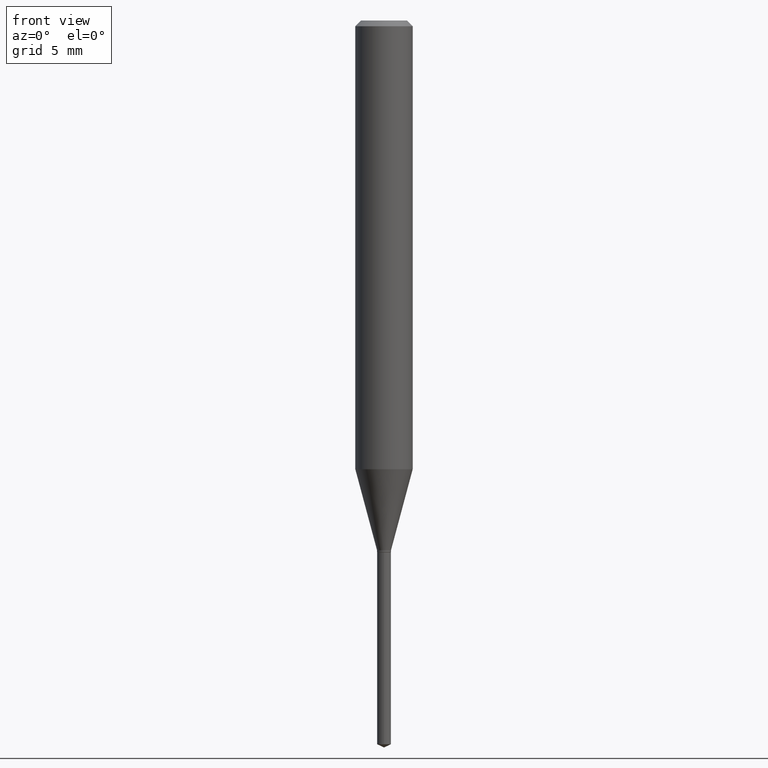
[diagram: clean part render]
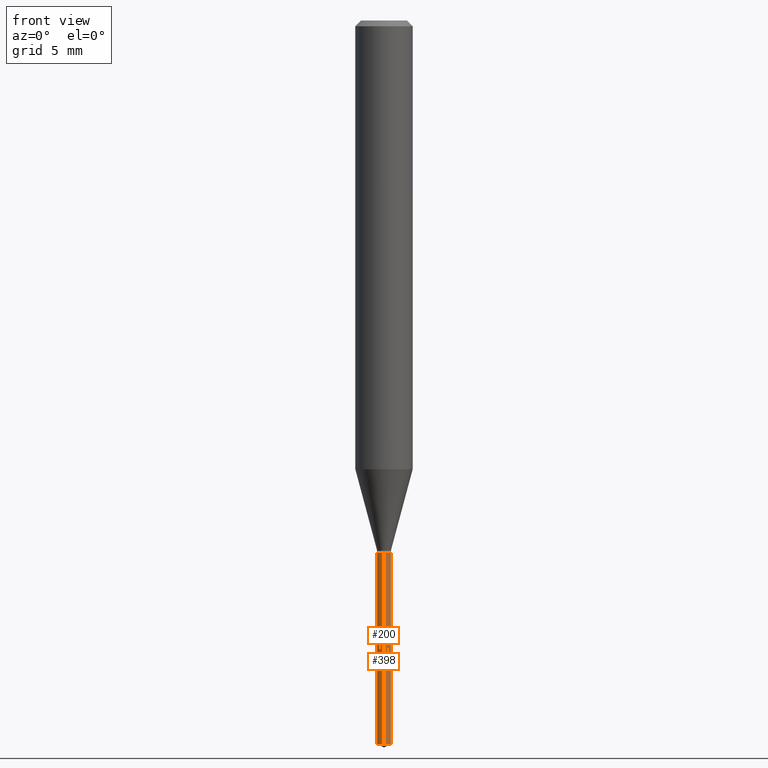
[diagram: same view with one multi-face feature highlighted, each face labeled with its STEP entity id]
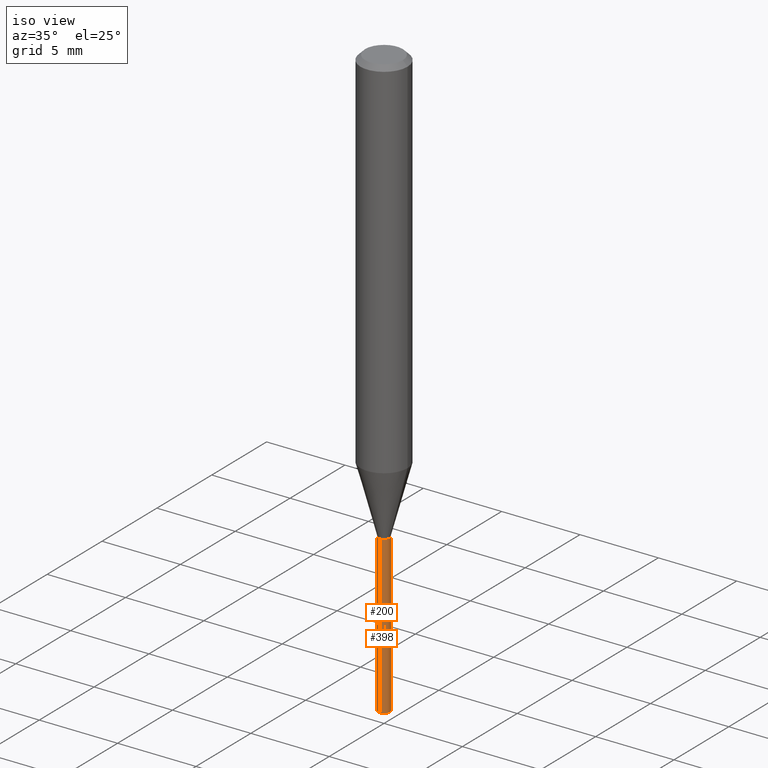
[diagram: same view with one multi-face feature highlighted, each face labeled with its STEP entity id]
A machine part, front view. The highlighted faces form ONE feature: a constant-radius fillet chain: 2 tangent blend faces with common blend radius 0.3645 mm. The faces share edges in the B-rep.
A second angle (iso view) of the same feature is appended — it is thin or edge-on in the first view.
Their STEP definitions:
[1] entity #398 (Cylinder):
#3 = VECTOR ( 'NONE', #466, 39.37007874015748143 ) ;
#18 = CARTESIAN_POINT ( 'NONE',  ( -1.002055144247615055E-16, -0.01435000000000520234, -1.489408485105475854 ) ) ;
#35 = CARTESIAN_POINT ( 'NONE',  ( 2.676565608369631794E-29, -3.821426325363822773E-15, -1.094499999999999806 ) ) ;
#38 = CARTESIAN_POINT ( 'NONE',  ( 1.019628825816011233E-16, 0.01434999999999617658, -1.094499999999999806 ) ) ;
#54 = ORIENTED_EDGE ( 'NONE', *, *, #120, .F. ) ;
#75 = DIRECTION ( 'NONE',  ( -2.443734758208125307E-29, 3.493964594242107448E-15, 1.000000000000000000 ) ) ;
#91 = VERTEX_POINT ( 'NONE', #18 ) ;
#120 = EDGE_CURVE ( 'NONE', #91, #232, #265, .T. ) ;
#135 = EDGE_CURVE ( 'NONE', #232, #359, #260, .T. ) ;
#144 = CARTESIAN_POINT ( 'NONE',  ( 3.641617199733199187E-29, -5.201222590288141765E-15, -1.489408485105475854 ) ) ;
#146 = LINE ( 'NONE', #38, #392 ) ;
#178 = CARTESIAN_POINT ( 'NONE',  ( 1.019628825816108239E-16, 0.01434999999999617484, -1.094499999999999806 ) ) ;
#193 = EDGE_CURVE ( 'NONE', #326, #359, #146, .T. ) ;
#194 = CIRCLE ( 'NONE', #234, 0.01434999999999999991 ) ;
#214 = CARTESIAN_POINT ( 'NONE',  ( -1.002055144247711567E-16, -0.01435000000000382150, -1.094499999999999806 ) ) ;
#224 = DIRECTION ( 'NONE',  ( -6.982962677686265922E-15, -1.000000000000000000, 0.000000000000000000 ) ) ;
#231 = CARTESIAN_POINT ( 'NONE',  ( -1.002055144247711567E-16, -0.01435000000000382150, -1.094499999999999806 ) ) ;
#232 = VERTEX_POINT ( 'NONE', #214 ) ;
#234 = AXIS2_PLACEMENT_3D ( 'NONE', #144, #453, #402 ) ;
#243 = EDGE_LOOP ( 'NONE', ( #401, #248, #321, #54 ) ) ;
#248 = ORIENTED_EDGE ( 'NONE', *, *, #193, .T. ) ;
#256 = EDGE_CURVE ( 'NONE', #91, #326, #194, .T. ) ;
#260 = CIRCLE ( 'NONE', #427, 0.01434999999999999991 ) ;
#265 = LINE ( 'NONE', #231, #3 ) ;
#321 = ORIENTED_EDGE ( 'NONE', *, *, #135, .F. ) ;
#326 = VERTEX_POINT ( 'NONE', #408 ) ;
#344 = DIRECTION ( 'NONE',  ( -2.443734758208125307E-29, 3.493964594242107842E-15, 1.000000000000000000 ) ) ;
#359 = VERTEX_POINT ( 'NONE', #178 ) ;
#368 = DIRECTION ( 'NONE',  ( -2.443734758208125307E-29, 3.493964594242107448E-15, 1.000000000000000000 ) ) ;
#371 = FACE_OUTER_BOUND ( 'NONE', #243, .T. ) ;
#373 = AXIS2_PLACEMENT_3D ( 'NONE', #35, #368, #224 ) ;
#380 = DIRECTION ( 'NONE',  ( -6.982962677686265922E-15, -1.000000000000000000, 0.000000000000000000 ) ) ;
#392 = VECTOR ( 'NONE', #344, 39.37007874015748143 ) ;
#398 = ADVANCED_FACE ( 'NONE', ( #371 ), #434, .T. ) ;
#401 = ORIENTED_EDGE ( 'NONE', *, *, #256, .T. ) ;
#402 = DIRECTION ( 'NONE',  ( -6.982962677686265922E-15, -1.000000000000000000, 0.000000000000000000 ) ) ;
#408 = CARTESIAN_POINT ( 'NONE',  ( 1.019628825816107869E-16, 0.01434999999999479747, -1.489408485105475854 ) ) ;
#423 = CARTESIAN_POINT ( 'NONE',  ( 2.676565608369631794E-29, -3.821426325363822773E-15, -1.094499999999999806 ) ) ;
#427 = AXIS2_PLACEMENT_3D ( 'NONE', #423, #75, #380 ) ;
#434 = CYLINDRICAL_SURFACE ( 'NONE', #373, 0.01434999999999999991 ) ;
#453 = DIRECTION ( 'NONE',  ( -2.443734758208125307E-29, 3.493964594242107448E-15, 1.000000000000000000 ) ) ;
#466 = DIRECTION ( 'NONE',  ( -2.443734758208125307E-29, 3.493964594242107842E-15, 1.000000000000000000 ) ) ;
[2] entity #200 (Cylinder):
#3 = VECTOR ( 'NONE', #466, 39.37007874015748143 ) ;
#18 = CARTESIAN_POINT ( 'NONE',  ( -1.002055144247615055E-16, -0.01435000000000520234, -1.489408485105475854 ) ) ;
#19 = ORIENTED_EDGE ( 'NONE', *, *, #120, .T. ) ;
#32 = CARTESIAN_POINT ( 'NONE',  ( 3.641617199733199187E-29, -5.201222590288141765E-15, -1.489408485105475854 ) ) ;
#38 = CARTESIAN_POINT ( 'NONE',  ( 1.019628825816011233E-16, 0.01434999999999617658, -1.094499999999999806 ) ) ;
#40 = AXIS2_PLACEMENT_3D ( 'NONE', #32, #482, #137 ) ;
#56 = ORIENTED_EDGE ( 'NONE', *, *, #297, .T. ) ;
#70 = CYLINDRICAL_SURFACE ( 'NONE', #113, 0.01434999999999999991 ) ;
#91 = VERTEX_POINT ( 'NONE', #18 ) ;
#113 = AXIS2_PLACEMENT_3D ( 'NONE', #151, #461, #458 ) ;
#120 = EDGE_CURVE ( 'NONE', #91, #232, #265, .T. ) ;
#132 = AXIS2_PLACEMENT_3D ( 'NONE', #357, #212, #360 ) ;
#137 = DIRECTION ( 'NONE',  ( -6.982962677686265922E-15, -1.000000000000000000, 0.000000000000000000 ) ) ;
#146 = LINE ( 'NONE', #38, #392 ) ;
#151 = CARTESIAN_POINT ( 'NONE',  ( 2.676565608369631794E-29, -3.821426325363822773E-15, -1.094499999999999806 ) ) ;
#161 = ORIENTED_EDGE ( 'NONE', *, *, #454, .F. ) ;
#178 = CARTESIAN_POINT ( 'NONE',  ( 1.019628825816108239E-16, 0.01434999999999617484, -1.094499999999999806 ) ) ;
#193 = EDGE_CURVE ( 'NONE', #326, #359, #146, .T. ) ;
#200 = ADVANCED_FACE ( 'NONE', ( #298 ), #70, .T. ) ;
#206 = CIRCLE ( 'NONE', #132, 0.01434999999999999991 ) ;
#212 = DIRECTION ( 'NONE',  ( -2.443734758208125307E-29, 3.493964594242107448E-15, 1.000000000000000000 ) ) ;
#214 = CARTESIAN_POINT ( 'NONE',  ( -1.002055144247711567E-16, -0.01435000000000382150, -1.094499999999999806 ) ) ;
#231 = CARTESIAN_POINT ( 'NONE',  ( -1.002055144247711567E-16, -0.01435000000000382150, -1.094499999999999806 ) ) ;
#232 = VERTEX_POINT ( 'NONE', #214 ) ;
#241 = EDGE_LOOP ( 'NONE', ( #406, #56, #19, #161 ) ) ;
#265 = LINE ( 'NONE', #231, #3 ) ;
#297 = EDGE_CURVE ( 'NONE', #326, #91, #472, .T. ) ;
#298 = FACE_OUTER_BOUND ( 'NONE', #241, .T. ) ;
#326 = VERTEX_POINT ( 'NONE', #408 ) ;
#344 = DIRECTION ( 'NONE',  ( -2.443734758208125307E-29, 3.493964594242107842E-15, 1.000000000000000000 ) ) ;
#357 = CARTESIAN_POINT ( 'NONE',  ( 2.676565608369631794E-29, -3.821426325363822773E-15, -1.094499999999999806 ) ) ;
#359 = VERTEX_POINT ( 'NONE', #178 ) ;
#360 = DIRECTION ( 'NONE',  ( -6.982962677686265922E-15, -1.000000000000000000, 0.000000000000000000 ) ) ;
#392 = VECTOR ( 'NONE', #344, 39.37007874015748143 ) ;
#406 = ORIENTED_EDGE ( 'NONE', *, *, #193, .F. ) ;
#408 = CARTESIAN_POINT ( 'NONE',  ( 1.019628825816107869E-16, 0.01434999999999479747, -1.489408485105475854 ) ) ;
#454 = EDGE_CURVE ( 'NONE', #359, #232, #206, .T. ) ;
#458 = DIRECTION ( 'NONE',  ( -6.982962677686265922E-15, -1.000000000000000000, 0.000000000000000000 ) ) ;
#461 = DIRECTION ( 'NONE',  ( -2.443734758208125307E-29, 3.493964594242107448E-15, 1.000000000000000000 ) ) ;
#466 = DIRECTION ( 'NONE',  ( -2.443734758208125307E-29, 3.493964594242107842E-15, 1.000000000000000000 ) ) ;
#472 = CIRCLE ( 'NONE', #40, 0.01434999999999999991 ) ;
#482 = DIRECTION ( 'NONE',  ( -2.443734758208125307E-29, 3.493964594242107448E-15, 1.000000000000000000 ) ) ;